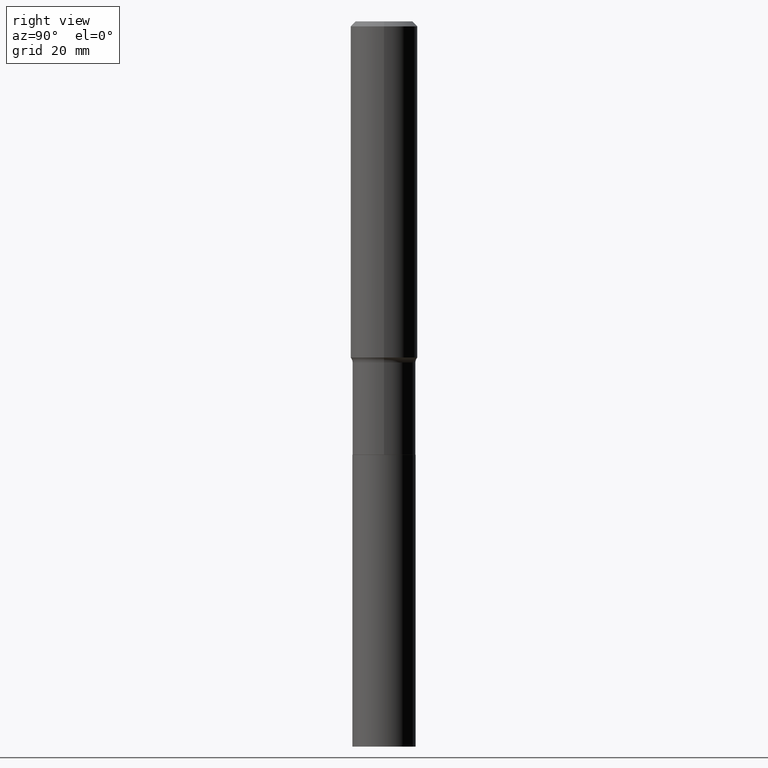
[diagram: clean part render]
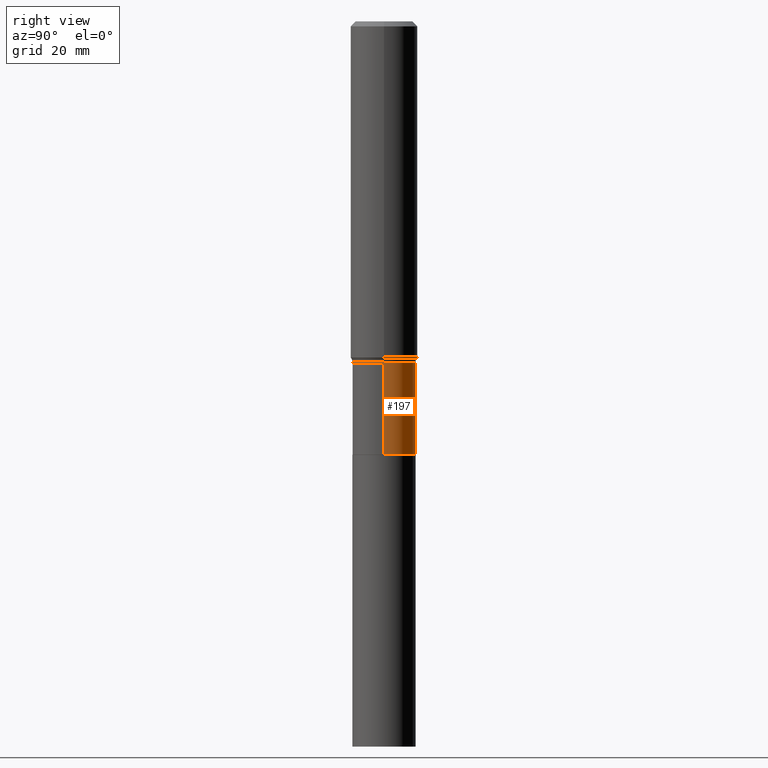
[diagram: same view with one face highlighted and labeled with its STEP entity id]
A machine part, right view. The second image highlights one B-rep face of the part: STEP entity #197.
In plain terms, the highlighted cylindrical surface (edge-blend (fillet) strip) has radius 8.5001 mm, axis along (-0, 0, 1).
Its self-contained STEP definition (entity closure, byte-faithful):
#21 = CARTESIAN_POINT ( 'NONE',  ( 0.000000000000000000, 0.000000000000000000, 0.000000000000000000 ) ) ;
#32 = VECTOR ( 'NONE', #322, 39.37007874015748143 ) ;
#35 = VERTEX_POINT ( 'NONE', #303 ) ;
#64 = EDGE_CURVE ( 'NONE', #412, #112, #354, .T. ) ;
#66 = CARTESIAN_POINT ( 'NONE',  ( 8.830098765373292000E-29, -1.260704081829483189E-14, -3.610800000000000232 ) ) ;
#78 = CARTESIAN_POINT ( 'NONE',  ( 0.3346500000000000585, -1.835122591695956180E-14, -4.586699999999999555 ) ) ;
#82 = EDGE_CURVE ( 'NONE', #297, #35, #181, .T. ) ;
#112 = VERTEX_POINT ( 'NONE', #397 ) ;
#116 = VECTOR ( 'NONE', #172, 39.37007874015748143 ) ;
#167 = DIRECTION ( 'NONE',  ( 1.000000000000000000, -6.982962677686266711E-15, 4.876176775795935232E-29 ) ) ;
#172 = DIRECTION ( 'NONE',  ( -2.445468806185136877E-29, 3.491481338843145188E-15, 1.000000000000000000 ) ) ;
#181 = LINE ( 'NONE', #209, #32 ) ;
#197 = ADVANCED_FACE ( 'NONE', ( #216 ), #353, .T. ) ;
#209 = CARTESIAN_POINT ( 'NONE',  ( -0.3346500000000000030, 2.377831265221175293E-15, -1.646121627953804231E-29 ) ) ;
#212 = EDGE_CURVE ( 'NONE', #112, #35, #399, .T. ) ;
#216 = FACE_OUTER_BOUND ( 'NONE', #253, .T. ) ;
#218 = AXIS2_PLACEMENT_3D ( 'NONE', #21, #394, #167 ) ;
#220 = ORIENTED_EDGE ( 'NONE', *, *, #64, .F. ) ;
#233 = CARTESIAN_POINT ( 'NONE',  ( -0.3346500000000000585, -1.193287787236216859E-14, -4.586699999999999555 ) ) ;
#253 = EDGE_LOOP ( 'NONE', ( #423, #287, #465, #220 ) ) ;
#264 = CARTESIAN_POINT ( 'NONE',  ( 1.121663177332936431E-28, -1.601437745687185429E-14, -4.586699999999999555 ) ) ;
#287 = ORIENTED_EDGE ( 'NONE', *, *, #82, .T. ) ;
#297 = VERTEX_POINT ( 'NONE', #233 ) ;
#303 = CARTESIAN_POINT ( 'NONE',  ( -0.3346499999999999475, -1.193287787236216859E-14, -3.610800000000000232 ) ) ;
#313 = DIRECTION ( 'NONE',  ( -2.445468806185136597E-29, 3.491481338843145583E-15, 1.000000000000000000 ) ) ;
#320 = DIRECTION ( 'NONE',  ( 1.000000000000000000, -6.982962677686262766E-15, 0.000000000000000000 ) ) ;
#322 = DIRECTION ( 'NONE',  ( -2.445468806185136877E-29, 3.491481338843145188E-15, 1.000000000000000000 ) ) ;
#339 = DIRECTION ( 'NONE',  ( -2.445468806185136597E-29, 3.491481338843145583E-15, 1.000000000000000000 ) ) ;
#351 = AXIS2_PLACEMENT_3D ( 'NONE', #264, #339, #401 ) ;
#353 = CYLINDRICAL_SURFACE ( 'NONE', #218, 0.3346500000000000030 ) ;
#354 = LINE ( 'NONE', #390, #116 ) ;
#390 = CARTESIAN_POINT ( 'NONE',  ( 0.3346500000000000030, -2.336848460087709085E-15, 1.631812558020109799E-29 ) ) ;
#394 = DIRECTION ( 'NONE',  ( -2.445468806185136597E-29, 3.491481338843145583E-15, 1.000000000000000000 ) ) ;
#395 = EDGE_CURVE ( 'NONE', #412, #297, #403, .T. ) ;
#397 = CARTESIAN_POINT ( 'NONE',  ( 0.3346499999999999475, -1.494388927838253940E-14, -3.610800000000000232 ) ) ;
#399 = CIRCLE ( 'NONE', #436, 0.3346499999999999475 ) ;
#401 = DIRECTION ( 'NONE',  ( 1.000000000000000000, -6.982962677686260400E-15, 0.000000000000000000 ) ) ;
#403 = CIRCLE ( 'NONE', #351, 0.3346500000000000585 ) ;
#412 = VERTEX_POINT ( 'NONE', #78 ) ;
#423 = ORIENTED_EDGE ( 'NONE', *, *, #395, .T. ) ;
#436 = AXIS2_PLACEMENT_3D ( 'NONE', #66, #313, #320 ) ;
#465 = ORIENTED_EDGE ( 'NONE', *, *, #212, .F. ) ;